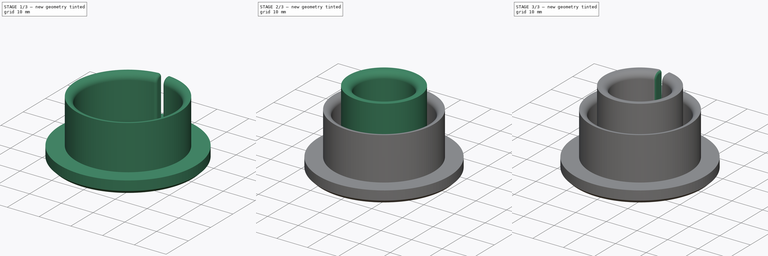
[diagram: build sequence overview — one tinted view per stage of 3, left to right]
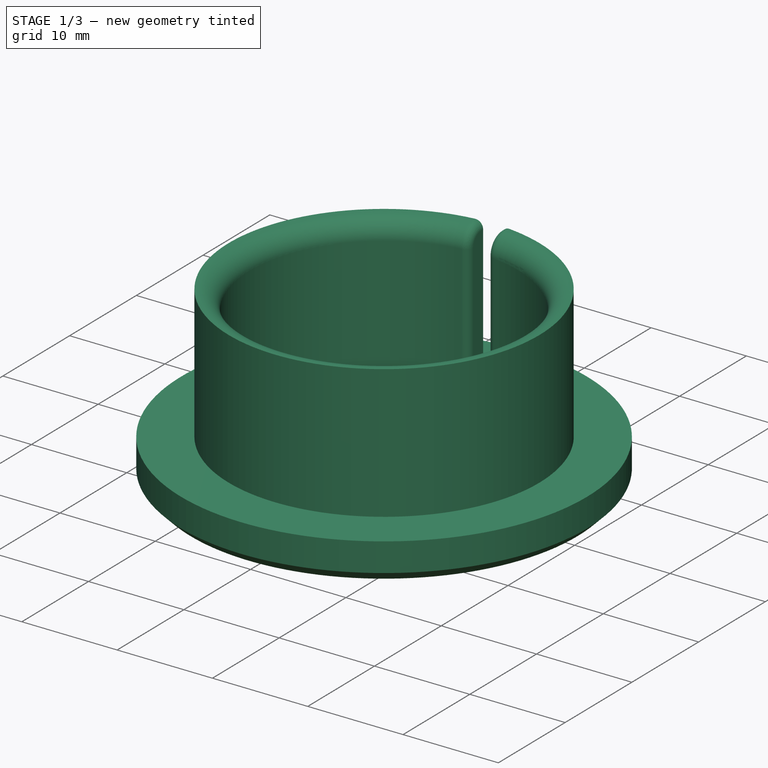
[diagram: stage 1 of 3 — iso view after this stage's code; geometry added in this stage tinted green]
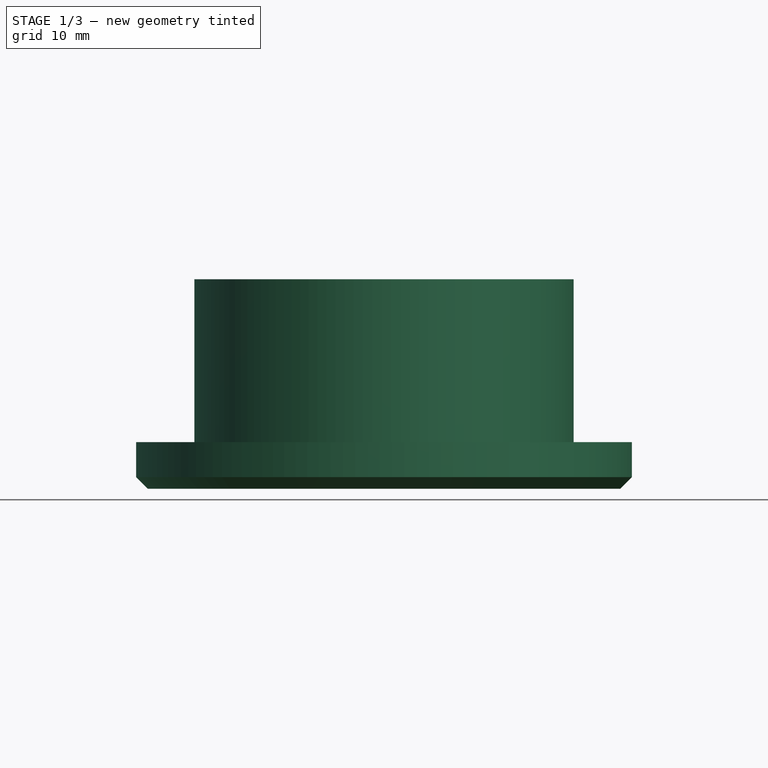
[diagram: stage 1 of 3 — front view after this stage's code; geometry added in this stage tinted green]
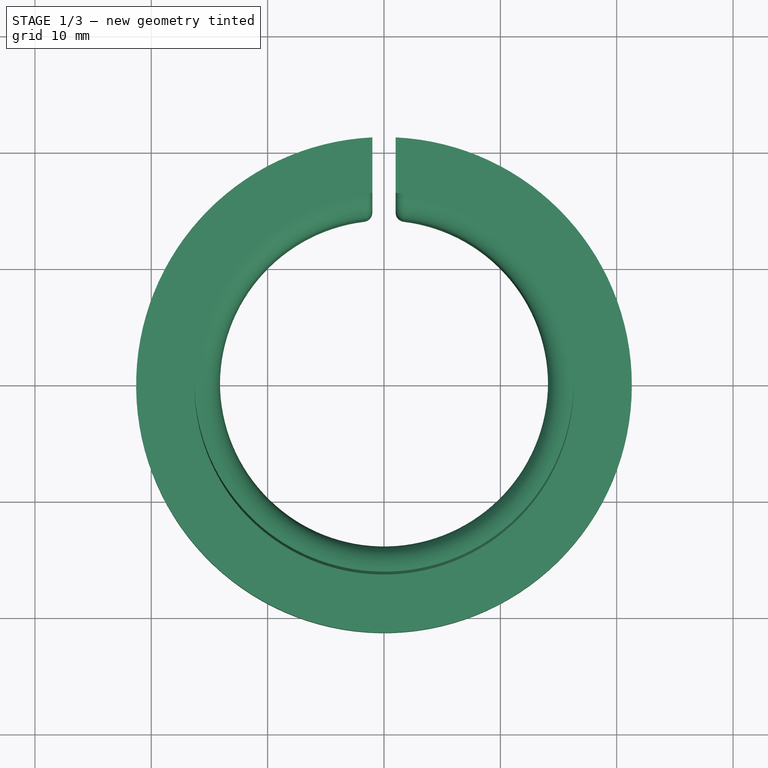
[diagram: stage 1 of 3 — top view after this stage's code; geometry added in this stage tinted green]
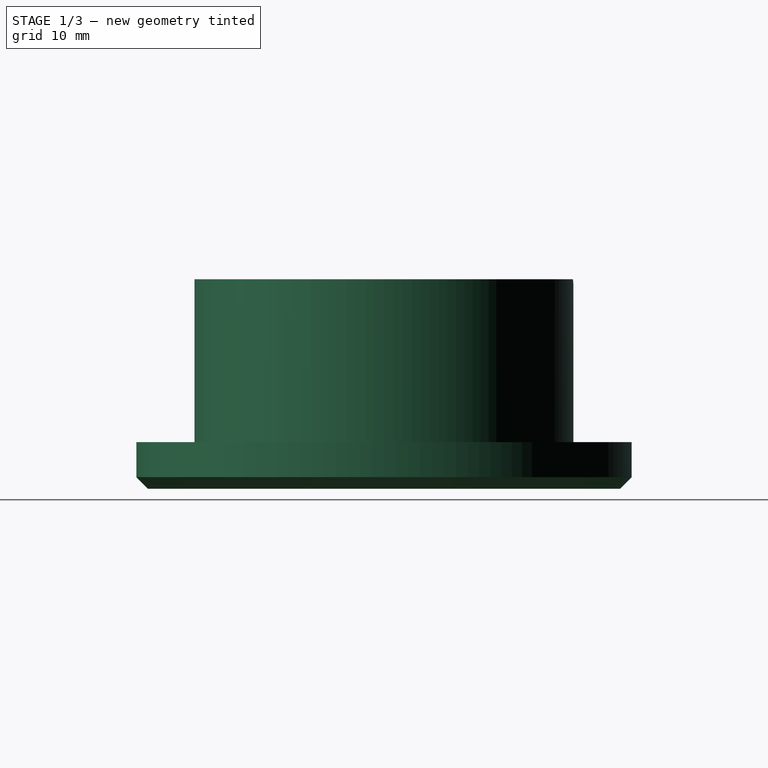
[diagram: stage 1 of 3 — right view after this stage's code; geometry added in this stage tinted green]
FCSTD DOCUMENT  (FreeCAD 0.18.4R)
Label: OneUp-EDC-front-brake-through-grommet
License: All rights reserved
LicenseURL: http://en.wikipedia.org/wiki/All_rights_reserved
objects: Sketcher::SketchObject×4, PartDesign::Fillet×4, PartDesign::Revolution×2, PartDesign::Pocket×2, PartDesign::Body×2, App::Part×2
note: 18 computed .brp shape members not serialized (recipe doc carries the construction recipe); baked Part::Feature solids carry a one-line shape summary decoded from their .brp

FEATURE [PartDesign::Body] Body
  Group = -> [Sketch,Revolution,Sketch001,Pocket,Fillet,Fillet001]
  Origin = -> Origin001
  Tip = -> Fillet001
FEATURE [App::Part] Part  label="top-cap-slider"
  Group = -> [Body]
  Origin = -> Origin
FEATURE [Sketcher::SketchObject] Sketch002
  MapMode = 5
  Placement = pos=(0,0,0) rot=(1,0,0;1.5708rad)
  Support = -> [XZ_Plane003]
  sketch-geometry (10):
    g0: LineSegment StartX=16.5645 StartY=0 StartZ=0 EndX=20.3 EndY=0 EndZ=0
    g1: LineSegment StartX=14.1 StartY=4.94975 StartZ=0 EndX=14.1 EndY=16 EndZ=0
    g2: ArcOfCircle CenterX=16.1 CenterY=16 CenterZ=0 NormalX=0 NormalY=0 NormalZ=1 AngleXU=0 Radius=2 StartAngle=1.5708 EndAngle=3.14159
    g3: LineSegment StartX=16.1 StartY=18 StartZ=0 EndX=16.3 EndY=18 EndZ=0
    g4: LineSegment StartX=16.3 StartY=18 StartZ=0 EndX=16.3 EndY=4 EndZ=0
    g5: LineSegment StartX=16.3 StartY=4 StartZ=0 EndX=21.3 EndY=4 EndZ=0
    g6: LineSegment StartX=16.5645 StartY=0 StartZ=0 EndX=15.8574 EndY=0.707107 EndZ=0
    g7: ArcOfCircle CenterX=20.1 CenterY=4.94975 CenterZ=0 NormalX=0 NormalY=0 NormalZ=1 AngleXU=0 Radius=6 StartAngle=3.14159 EndAngle=3.92699
    g8: LineSegment StartX=20.3 StartY=0 StartZ=0 EndX=21.3 EndY=1 EndZ=0
    g9: LineSegment StartX=21.3 StartY=4 StartZ=0 EndX=21.3 EndY=1 EndZ=0
  constraints (27):
    c: Vertical(g1)
    c: Horizontal(g3)
    c: Coincident(g4,g3)
    c: Vertical(g4)
    c: Tangent(g2,g1) = 1.5708
    c: Tangent(g3,g2) = 1.5708
    c: DistanceX(g-1,g3) = 16.3
    c: DistanceX(g1,g3) = 2.2
    c: Coincident(g4,g5)
    c: Horizontal(g5)
    c: Tangent(g0,g-1) = -1.5708
    c: DistanceX(g5,g5) = 5
    c: Radius(g2) = 2
    c: DistanceY(g-1,g2) = 18
    c: Coincident(g6,g0)
    c: Tangent(g7,g6) = 1.5708
    c: Tangent(g7,g1) = 1.5708
    c: Angle(g0,g6) = 2.35619
    c: Radius(g7) = 6
    c: DistanceY(g-1,g4) = 4
    c: Coincident(g8,g0)
    c: Angle(g8,g0) = 2.35619
    c: Coincident(g9,g5)
    c: Vertical(g9)
    c: DistanceY(g9,g9) = 3
    c: Coincident(g8,g9)
    c: Distance(g6) = 1
FEATURE [PartDesign::Revolution] Revolution001
  Angle = 360
  Axis = (0,-2e-16,1)
  Base = (0,0,0)
  Placement = pos=(0,0,0) rot=(1,0,0;1.5708rad)
  Profile = -> Sketch002
  ReferenceAxis = -> Sketch002 [V_Axis]
  Refine = true
  Reversed = true
FEATURE [Sketcher::SketchObject] Sketch003
  MapMode = 5
  Placement = pos=(0,0,0) rot=(1,0,0;1.5708rad)
  Support = -> [XZ_Plane003]
  sketch-geometry (4):
    g0: LineSegment StartX=-1 StartY=0 StartZ=0 EndX=1 EndY=0 EndZ=0
    g1: LineSegment StartX=1 StartY=0 StartZ=0 EndX=1 EndY=40 EndZ=0
    g2: LineSegment StartX=1 StartY=40 StartZ=0 EndX=-1 EndY=40 EndZ=0
    g3: LineSegment StartX=-1 StartY=40 StartZ=0 EndX=-1 EndY=0 EndZ=0
  constraints (11):
    c: Coincident(g0,g1)
    c: Coincident(g1,g2)
    c: Coincident(g2,g3)
    c: Coincident(g3,g0)
    c: Horizontal(g0)
    c: Horizontal(g2)
    c: Vertical(g1)
    c: Vertical(g3)
    c: Symmetric(g0,g0,g-1)
    c: DistanceY(g1,g1) = 40
    c: DistanceX(g0,g0) = 2
FEATURE [PartDesign::Pocket] Pocket001
  BaseFeature = -> Revolution001
  Length = 5
  Length2 = 100
  Placement = pos=(0,0,0) rot=(1,0,0;1.5708rad)
  Profile = -> Sketch003
  Refine = true
  Type = 1
FEATURE [PartDesign::Fillet] Fillet003
  Base = -> Pocket001 [Edge17,Edge24]
  BaseFeature = -> Pocket001
  Placement = pos=(0,0,0) rot=(1,0,0;1.5708rad)
  Radius = 0.8
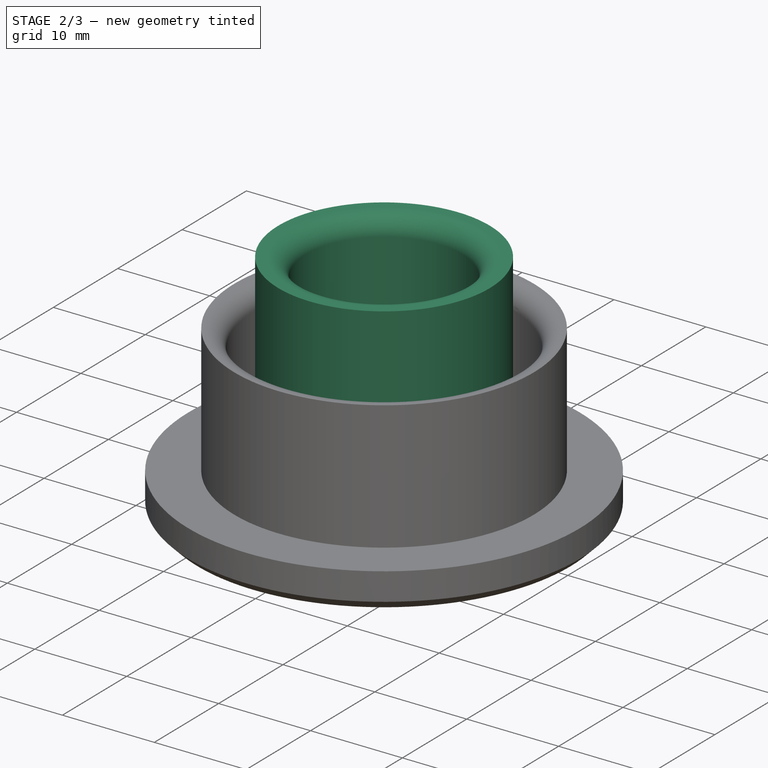
[diagram: stage 2 of 3 — iso view after this stage's code; geometry added in this stage tinted green]
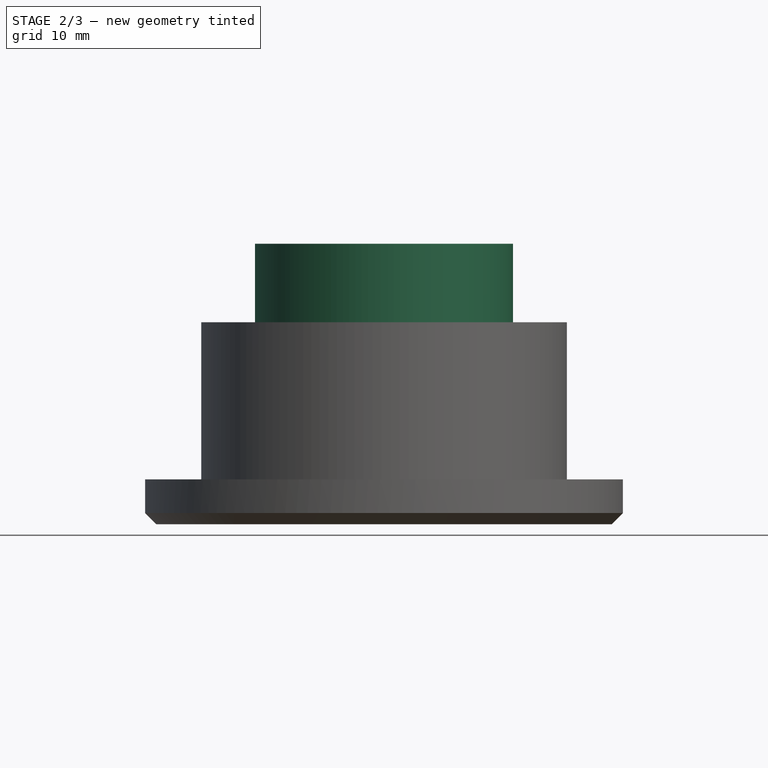
[diagram: stage 2 of 3 — front view after this stage's code; geometry added in this stage tinted green]
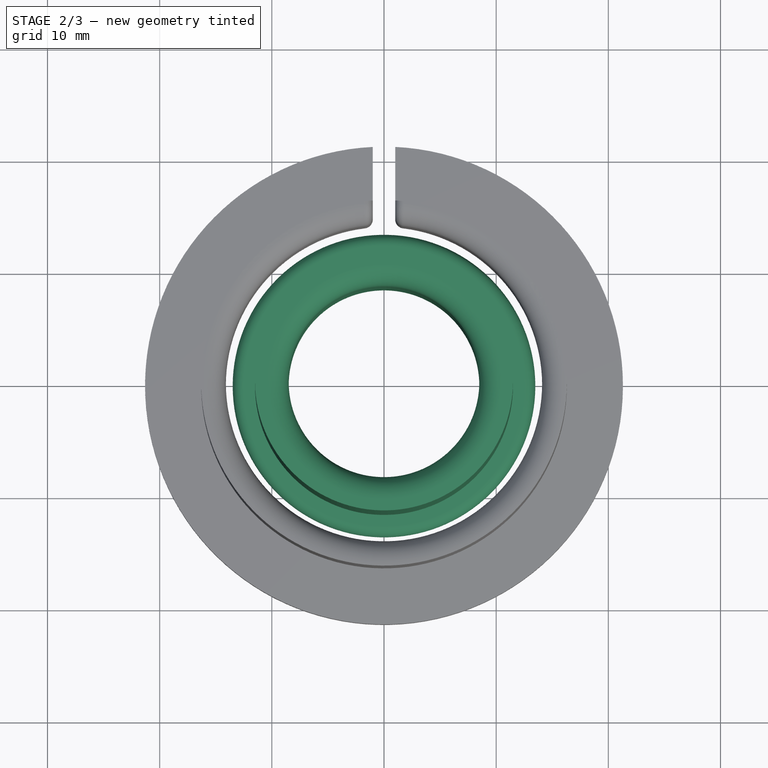
[diagram: stage 2 of 3 — top view after this stage's code; geometry added in this stage tinted green]
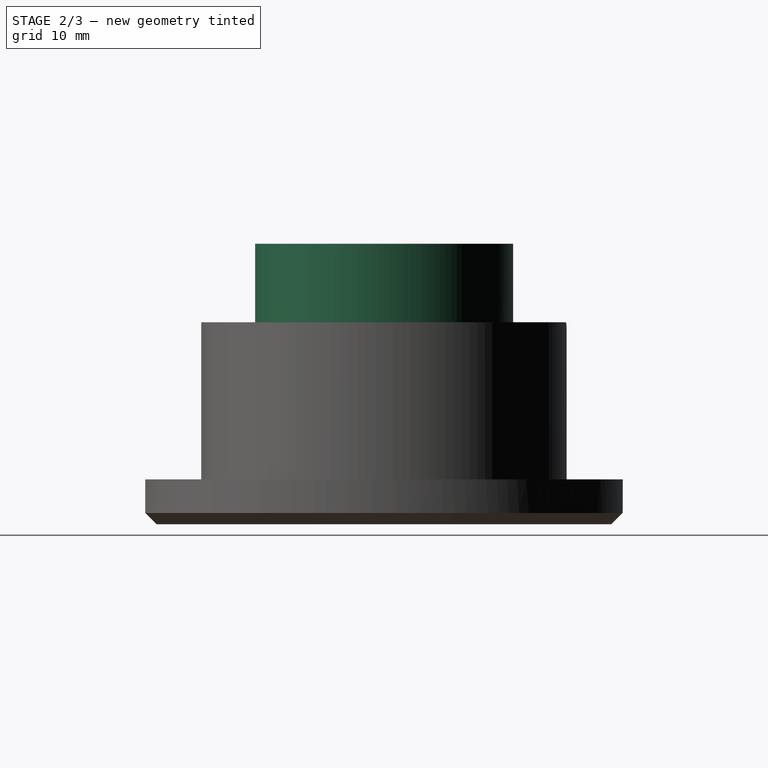
[diagram: stage 2 of 3 — right view after this stage's code; geometry added in this stage tinted green]
FEATURE [Sketcher::SketchObject] Sketch
  MapMode = 5
  Placement = pos=(0,0,0) rot=(1,0,0;1.5708rad)
  Support = -> [XZ_Plane001]
  sketch-geometry (10):
    g0: LineSegment StartX=10.3472 StartY=0 StartZ=0 EndX=12.3472 EndY=0 EndZ=0
    g1: LineSegment StartX=8.5 StartY=3.08988 StartZ=0 EndX=8.5 EndY=23 EndZ=0
    g2: ArcOfCircle CenterX=10.5 CenterY=23 CenterZ=0 NormalX=0 NormalY=0 NormalZ=1 AngleXU=0 Radius=2 StartAngle=1.5708 EndAngle=3.14159
    g3: LineSegment StartX=10.5 StartY=25 StartZ=0 EndX=11.5 EndY=25 EndZ=0
    g4: LineSegment StartX=11.5 StartY=25 StartZ=0 EndX=11.5 EndY=2 EndZ=0
    g5: LineSegment StartX=11.5 StartY=2 StartZ=0 EndX=12.5 EndY=2 EndZ=0
    g6: LineSegment StartX=10.3472 StartY=0 StartZ=0 EndX=9.37868 EndY=0.968561 EndZ=0
    g7: ArcOfCircle CenterX=11.5 CenterY=3.08988 CenterZ=0 NormalX=0 NormalY=0 NormalZ=1 AngleXU=0 Radius=3 StartAngle=3.14159 EndAngle=3.92699
    g8: ArcOfCircle CenterX=12.5 CenterY=1 CenterZ=0 NormalX=0 NormalY=0 NormalZ=1 AngleXU=0 Radius=1 StartAngle=0.143035 EndAngle=1.5708
    g9: LineSegment StartX=12.3472 StartY=0 StartZ=0 EndX=13.4898 EndY=1.14255 EndZ=0
  constraints (26):
    c: Vertical(g1)
    c: Horizontal(g3)
    c: Coincident(g4,g3)
    c: Vertical(g4)
    c: Tangent(g2,g1) = 1.5708
    c: Tangent(g3,g2) = 1.5708
    c: DistanceX(g-1,g3) = 11.5
    c: DistanceX(g1,g3) = 3
    c: Coincident(g4,g5)
    c: Horizontal(g5)
    c: Tangent(g0,g-1) = -1.5708
    c: DistanceX(g5,g5) = 1
    c: Radius(g2) = 2
    c: DistanceY(g-1,g2) = 25
    c: Coincident(g6,g0)
    c: Tangent(g7,g6) = 1.5708
    c: Tangent(g7,g1) = 1.5708
    c: Angle(g0,g6) = 2.35619
    c: Radius(g7) = 3
    c: DistanceY(g-1,g4) = 2
    c: DistanceX(g0,g0) = 2
    c: Coincident(g9,g0)
    c: Coincident(g9,g8)
    c: Tangent(g8,g5) = 1.5708
    c: Radius(g8) = 1
    c: Angle(g9,g0) = 2.35619
FEATURE [PartDesign::Revolution] Revolution
  Angle = 360
  Axis = (0,2e-16,1)
  Base = (0,0,0)
  Placement = pos=(0,0,0) rot=(1,0,0;1.5708rad)
  Profile = -> Sketch
  ReferenceAxis = -> Sketch [V_Axis]
  Refine = true
  Reversed = true
FEATURE [PartDesign::Fillet] Fillet002
  Base = -> Fillet003 [Edge49,Edge28]
  BaseFeature = -> Fillet003
  Placement = pos=(0,0,0) rot=(1,0,0;1.5708rad)
  Radius = 0.5
FEATURE [PartDesign::Body] Body001
  Group = -> [Sketch002,Revolution001,Sketch003,Pocket001,Fillet003,Fillet002]
  Origin = -> Origin003
  Tip = -> Fillet002
FEATURE [App::Part] Part001  label="bottom-rockshox-pike-dj"
  Group = -> [Body001]
  Origin = -> Origin002
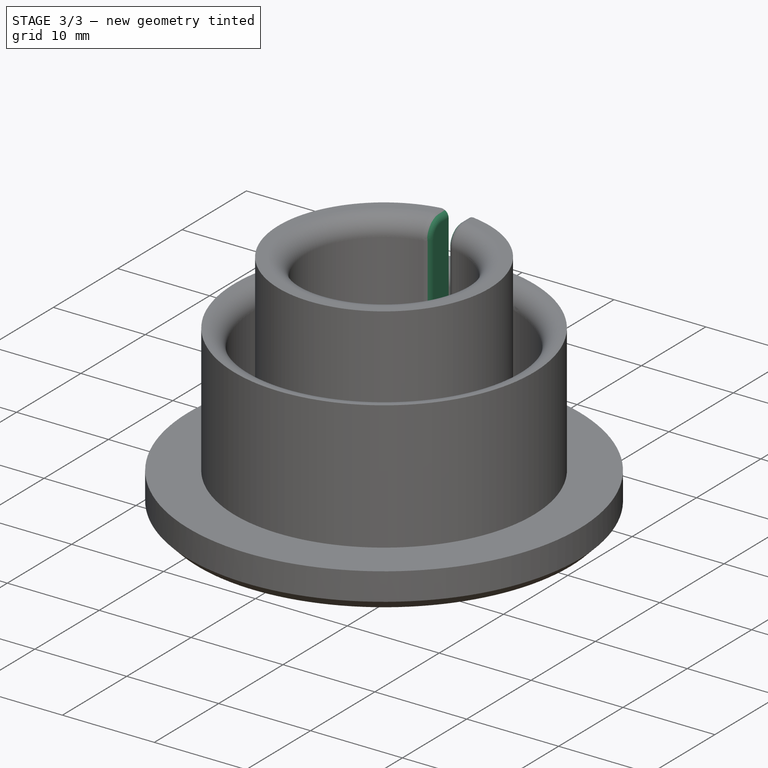
[diagram: stage 3 of 3 — iso view after this stage's code; geometry added in this stage tinted green]
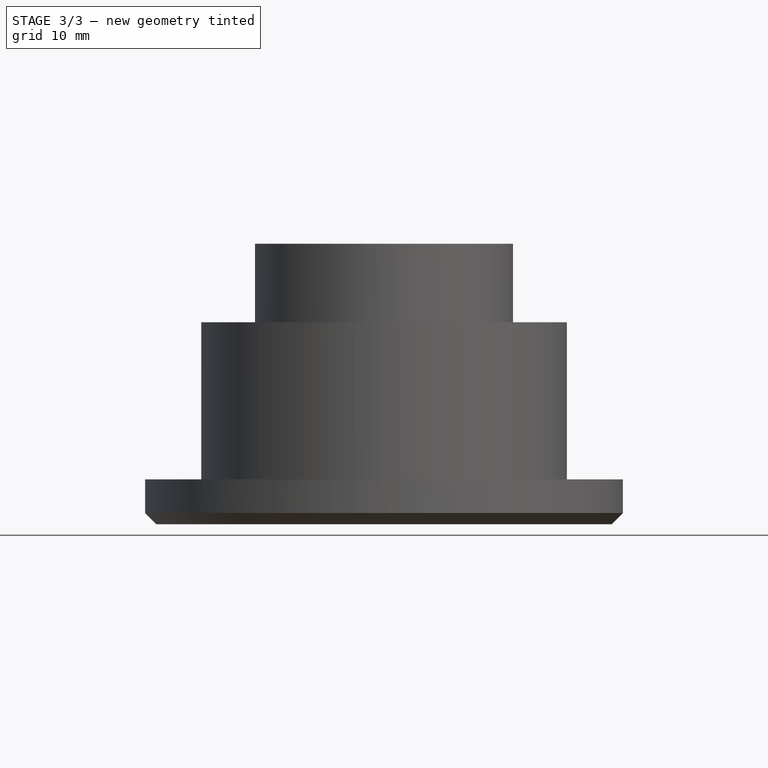
[diagram: stage 3 of 3 — front view after this stage's code; geometry added in this stage tinted green]
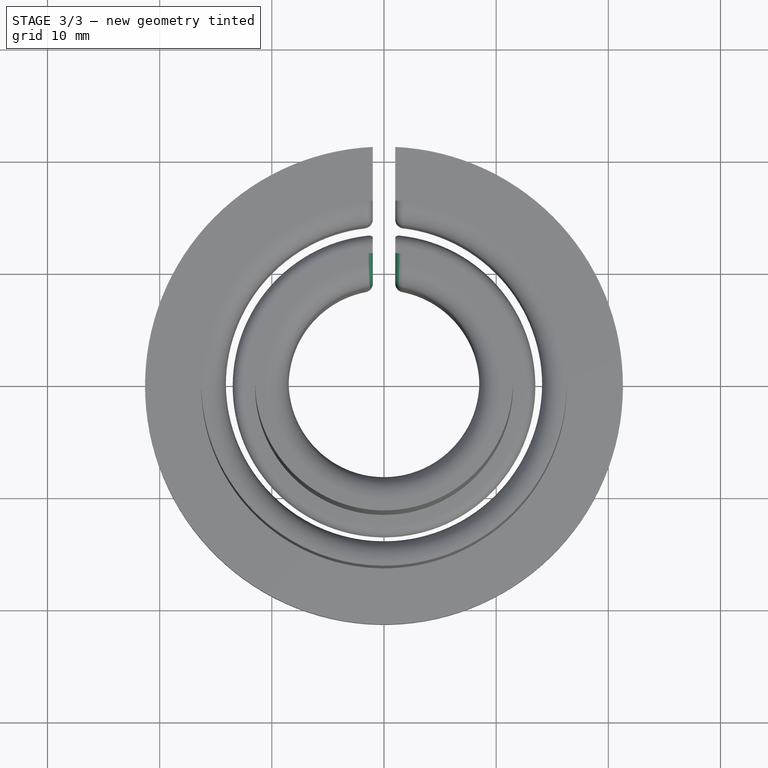
[diagram: stage 3 of 3 — top view after this stage's code; geometry added in this stage tinted green]
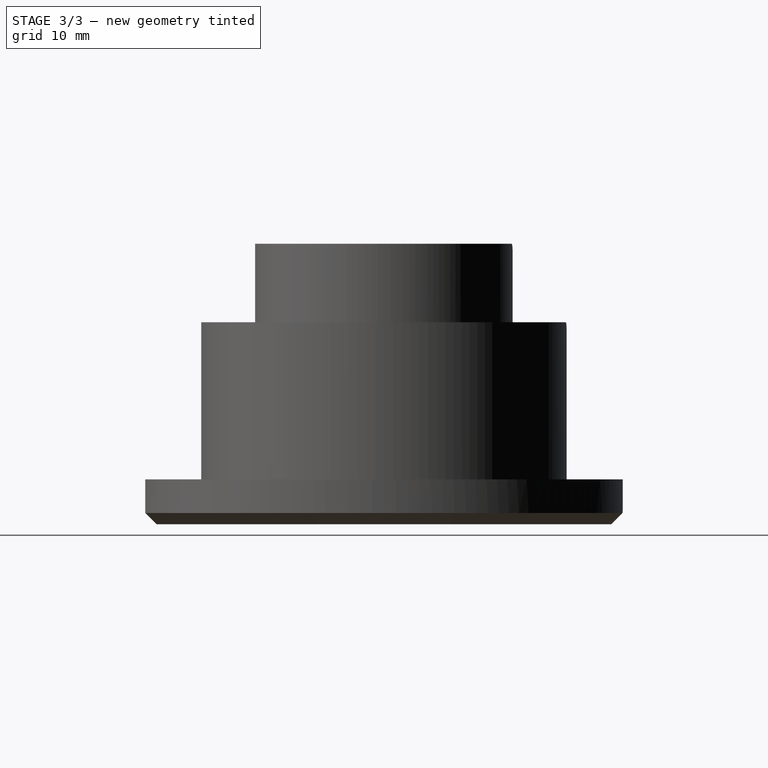
[diagram: stage 3 of 3 — right view after this stage's code; geometry added in this stage tinted green]
FEATURE [Sketcher::SketchObject] Sketch001
  MapMode = 5
  Placement = pos=(0,0,0) rot=(1,0,0;1.5708rad)
  Support = -> [XZ_Plane001]
  sketch-geometry (4):
    g0: LineSegment StartX=-1 StartY=0 StartZ=0 EndX=1 EndY=0 EndZ=0
    g1: LineSegment StartX=1 StartY=0 StartZ=0 EndX=1 EndY=40 EndZ=0
    g2: LineSegment StartX=1 StartY=40 StartZ=0 EndX=-1 EndY=40 EndZ=0
    g3: LineSegment StartX=-1 StartY=40 StartZ=0 EndX=-1 EndY=0 EndZ=0
  constraints (11):
    c: Coincident(g0,g1)
    c: Coincident(g1,g2)
    c: Coincident(g2,g3)
    c: Coincident(g3,g0)
    c: Horizontal(g0)
    c: Horizontal(g2)
    c: Vertical(g1)
    c: Vertical(g3)
    c: Symmetric(g0,g0,g-1)
    c: DistanceY(g1,g1) = 40
    c: DistanceX(g0,g0) = 2
FEATURE [PartDesign::Pocket] Pocket
  BaseFeature = -> Revolution
  Length = 5
  Length2 = 100
  Placement = pos=(0,0,0) rot=(1,0,0;1.5708rad)
  Profile = -> Sketch001
  Refine = true
  Type = 1
FEATURE [PartDesign::Fillet] Fillet
  Base = -> Pocket [Edge17,Edge24]
  BaseFeature = -> Pocket
  Placement = pos=(0,0,0) rot=(1,0,0;1.5708rad)
  Radius = 0.8
FEATURE [PartDesign::Fillet] Fillet001
  Base = -> Fillet [Edge49,Edge28]
  BaseFeature = -> Fillet
  Placement = pos=(0,0,0) rot=(1,0,0;1.5708rad)
  Radius = 0.5
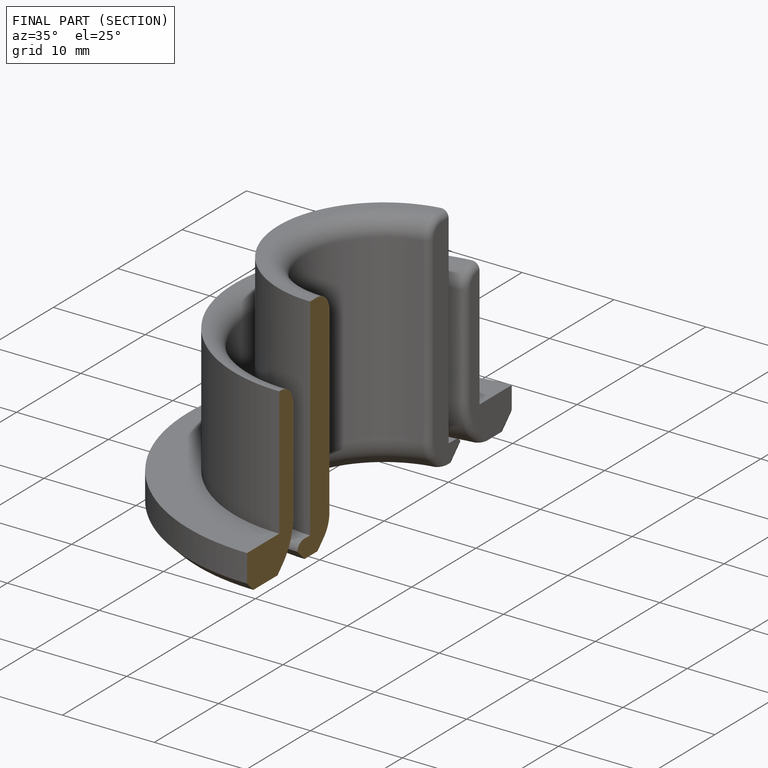
[diagram: finished part — half-section view (interior)]
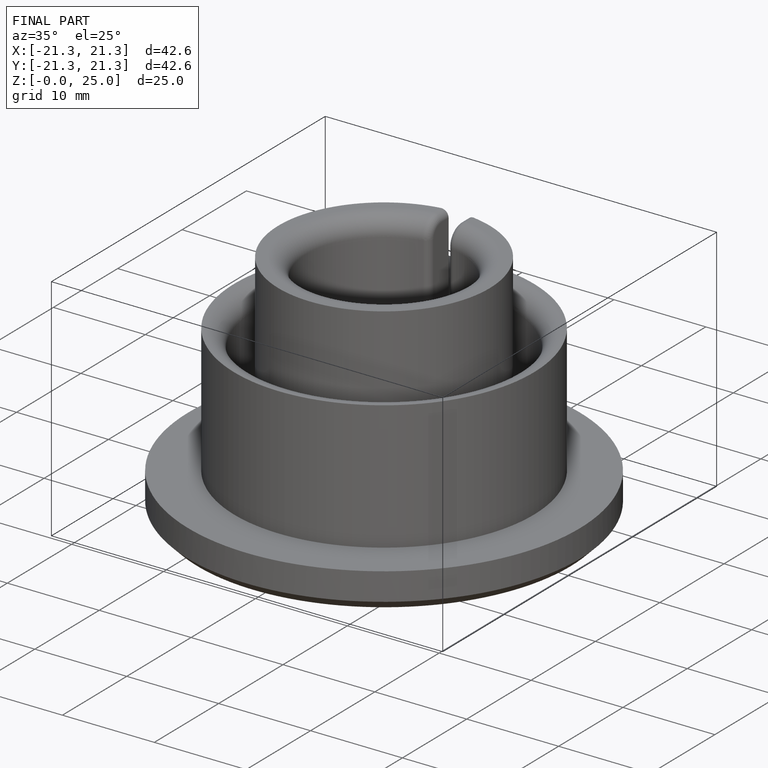
[diagram: finished part — iso view with bounding-box wireframe]
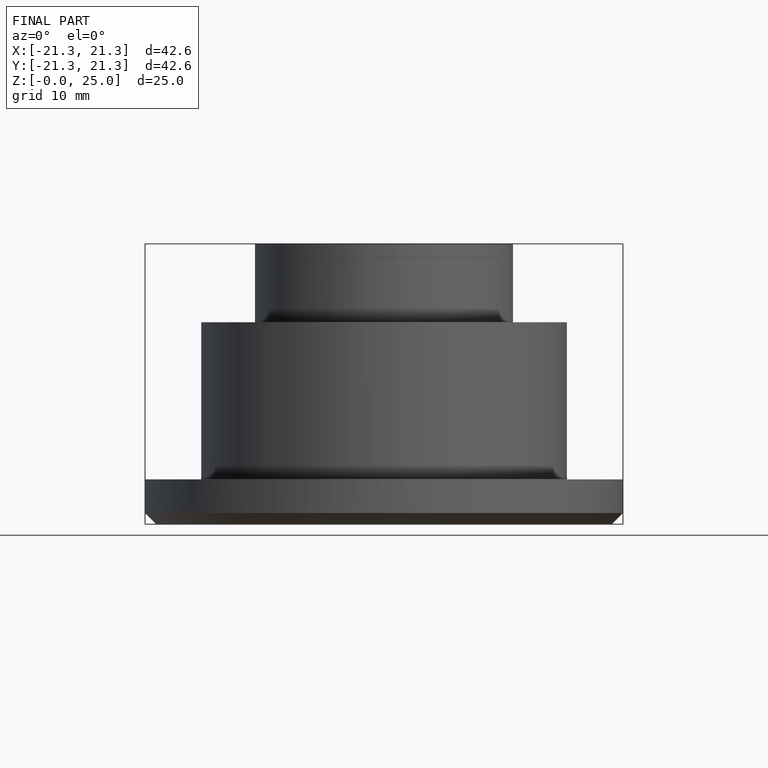
[diagram: finished part — front view with bounding-box wireframe]
